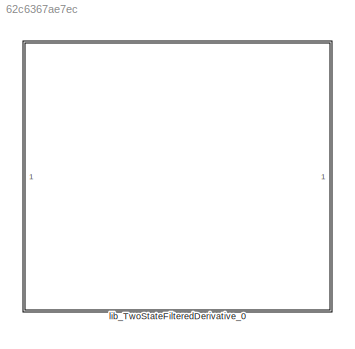
MODEL slx_62c6367ae7ec
KIND library
CONFIG AbsTol = auto
CONFIG EnableMultiTasking = off
CONFIG FixedStep = auto
CONFIG MaxStep = auto
CONFIG MinStep = auto
CONFIG RelTol = 1e-3
CONFIG SampleTimeConstraint = Unconstrained
CONFIG SolverName = VariableStepAuto
CONFIG StartTime = 0.0
CONFIG StopTime = 10.0
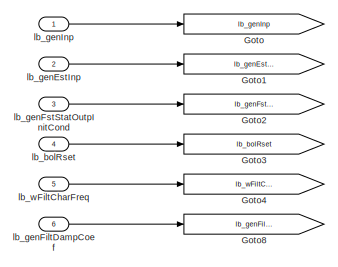
[diagram: lib_TwoStateFilteredDerivative_0 - part 1/4, top left region]
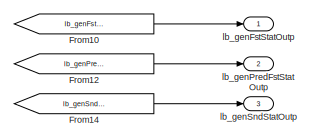
[diagram: lib_TwoStateFilteredDerivative_0 - part 2/4, top right region]
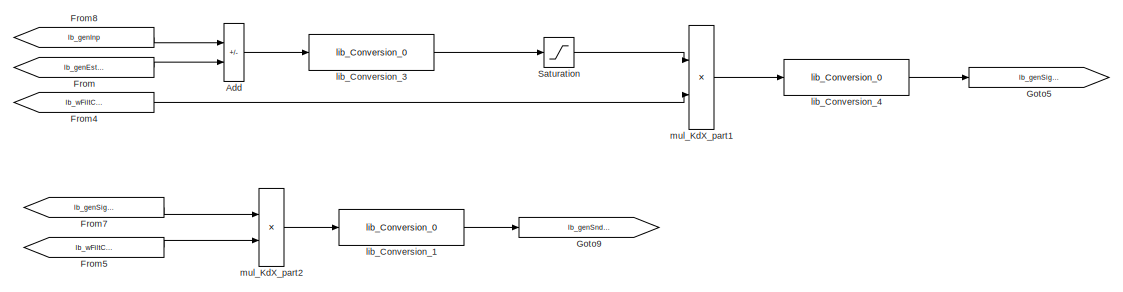
[diagram: lib_TwoStateFilteredDerivative_0 - part 3/4, central region]
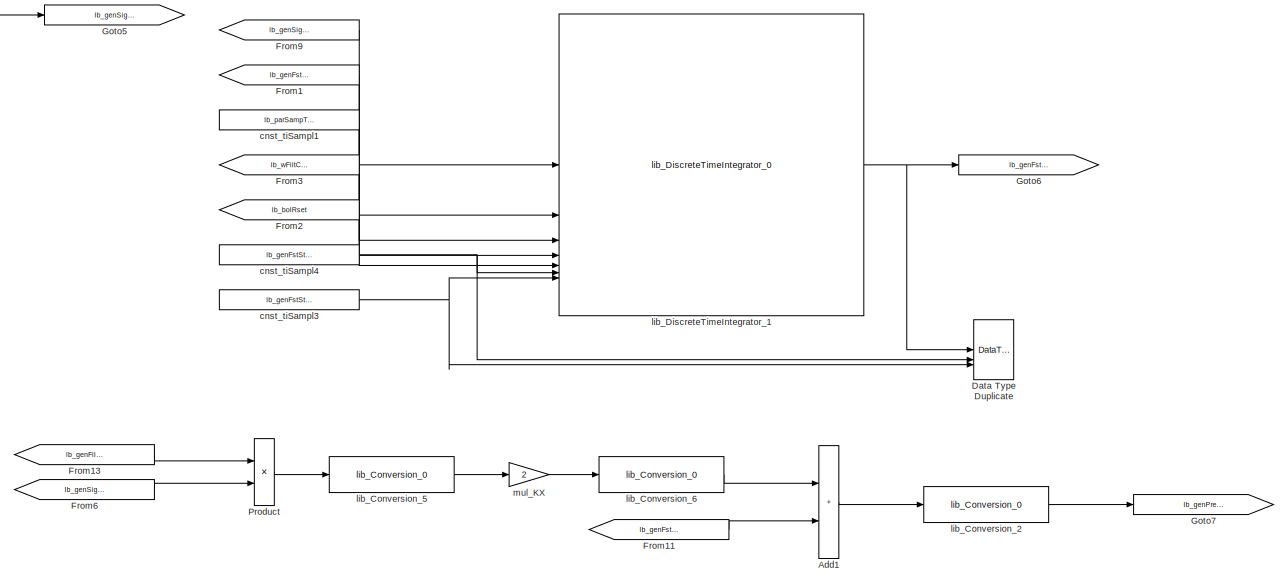
[diagram: lib_TwoStateFilteredDerivative_0 - part 4/4, bottom right region]
BLOCK [SubSystem] lib_TwoStateFilteredDerivative_0
BLOCK [Sum] lib_TwoStateFilteredDerivative_0/Add
  IconShape = rectangular
  Inputs = +-
  OutDataTypeStr = Inherit: Inherit via back propagation
  RndMeth = Simplest
BLOCK [Sum] lib_TwoStateFilteredDerivative_0/Add1
  IconShape = rectangular
  OutDataTypeStr = Inherit: Inherit via back propagation
  RndMeth = Simplest
BLOCK [DataTypeDuplicate] lib_TwoStateFilteredDerivative_0/Data Type Duplicate
  NumInputPorts = 3
BLOCK [From] lib_TwoStateFilteredDerivative_0/From
  GotoTag = lb_genEstInp
BLOCK [From] lib_TwoStateFilteredDerivative_0/From1
  GotoTag = lb_genFstStatOutpInitCond
BLOCK [From] lib_TwoStateFilteredDerivative_0/From10
  GotoTag = lb_genFstStatOutp
BLOCK [From] lib_TwoStateFilteredDerivative_0/From11
  GotoTag = lb_genFstStatOutp
BLOCK [From] lib_TwoStateFilteredDerivative_0/From12
  GotoTag = lb_genPredFstStatOutp
BLOCK [From] lib_TwoStateFilteredDerivative_0/From13
  GotoTag = lb_genFiltDampCoef
BLOCK [From] lib_TwoStateFilteredDerivative_0/From14
  GotoTag = lb_genSndStatOutp
BLOCK [From] lib_TwoStateFilteredDerivative_0/From2
  GotoTag = lb_bolRset
BLOCK [From] lib_TwoStateFilteredDerivative_0/From3
  GotoTag = lb_wFiltCharFreq
BLOCK [From] lib_TwoStateFilteredDerivative_0/From4
  GotoTag = lb_wFiltCharFreq
BLOCK [From] lib_TwoStateFilteredDerivative_0/From5
  GotoTag = lb_wFiltCharFreq
BLOCK [From] lib_TwoStateFilteredDerivative_0/From6
  GotoTag = lb_genSigForIntg
BLOCK [From] lib_TwoStateFilteredDerivative_0/From7
  GotoTag = lb_genSigForIntg
BLOCK [From] lib_TwoStateFilteredDerivative_0/From8
  GotoTag = lb_genInp
BLOCK [From] lib_TwoStateFilteredDerivative_0/From9
  GotoTag = lb_genSigForIntg
BLOCK [Goto] lib_TwoStateFilteredDerivative_0/Goto
  GotoTag = lb_genInp
BLOCK [Goto] lib_TwoStateFilteredDerivative_0/Goto1
  GotoTag = lb_genEstInp
BLOCK [Goto] lib_TwoStateFilteredDerivative_0/Goto2
  GotoTag = lb_genFstStatOutpInitCond
BLOCK [Goto] lib_TwoStateFilteredDerivative_0/Goto3
  GotoTag = lb_bolRset
BLOCK [Goto] lib_TwoStateFilteredDerivative_0/Goto4
  GotoTag = lb_wFiltCharFreq
BLOCK [Goto] lib_TwoStateFilteredDerivative_0/Goto5
  GotoTag = lb_genSigForIntg
BLOCK [Goto] lib_TwoStateFilteredDerivative_0/Goto6
  GotoTag = lb_genFstStatOutp
BLOCK [Goto] lib_TwoStateFilteredDerivative_0/Goto7
  GotoTag = lb_genPredFstStatOutp
BLOCK [Goto] lib_TwoStateFilteredDerivative_0/Goto8
  GotoTag = lb_genFiltDampCoef
BLOCK [Goto] lib_TwoStateFilteredDerivative_0/Goto9
  GotoTag = lb_genSndStatOutp
BLOCK [Product] lib_TwoStateFilteredDerivative_0/Product
  OutDataTypeStr = Inherit: Inherit via back propagation
  RndMeth = Simplest
BLOCK [Saturate] lib_TwoStateFilteredDerivative_0/Saturation
  LowerLimit = -lb_genInpEstErrMaxVal
  RndMeth = Simplest
  UpperLimit = lb_genInpEstErrMaxVal
BLOCK [Constant] lib_TwoStateFilteredDerivative_0/cnst_tiSampl1
  SampleTime = -1
  Value = lb_parSampTime
BLOCK [Constant] lib_TwoStateFilteredDerivative_0/cnst_tiSampl3
  OutDataTypeStr = Inherit: Inherit via back propagation
  SampleTime = -1
  Value = lb_genFstStatOutpUpLim
BLOCK [Constant] lib_TwoStateFilteredDerivative_0/cnst_tiSampl4
  OutDataTypeStr = Inherit: Inherit via back propagation
  SampleTime = -1
  Value = lb_genFstStatOutpLowLim
BLOCK [Inport] lib_TwoStateFilteredDerivative_0/lb_bolRset
  OutDataTypeStr = boolean
  Port = 4
  PortDimensions = 1
  SamplingMode = Sample based
  VarSizeSig = No
BLOCK [Inport] lib_TwoStateFilteredDerivative_0/lb_genEstInp
  Port = 2
  PortDimensions = 1
  SamplingMode = Sample based
  SignalType = real
  VarSizeSig = No
BLOCK [Inport] lib_TwoStateFilteredDerivative_0/lb_genFiltDampCoef
  Port = 6
BLOCK [Outport] lib_TwoStateFilteredDerivative_0/lb_genFstStatOutp
  PortDimensions = 1
  SamplingMode = Sample based
  SignalType = real
  VarSizeSig = No
  VectorParamsAs1DForOutWhenUnconnected = off
BLOCK [Inport] lib_TwoStateFilteredDerivative_0/lb_genFstStatOutpInitCond
  Port = 3
  PortDimensions = 1
  SamplingMode = Sample based
  SignalType = real
  VarSizeSig = No
BLOCK [Inport] lib_TwoStateFilteredDerivative_0/lb_genInp
  PortDimensions = 1
  SamplingMode = Sample based
  SignalType = real
  VarSizeSig = No
BLOCK [Outport] lib_TwoStateFilteredDerivative_0/lb_genPredFstStatOutp
  Port = 2
  PortDimensions = 1
  SamplingMode = Sample based
  SignalType = real
  VarSizeSig = No
  VectorParamsAs1DForOutWhenUnconnected = off
BLOCK [Outport] lib_TwoStateFilteredDerivative_0/lb_genSndStatOutp
  Port = 3
  PortDimensions = 1
  SamplingMode = Sample based
  SignalType = real
  VarSizeSig = No
  VectorParamsAs1DForOutWhenUnconnected = off
BLOCK [Inport] lib_TwoStateFilteredDerivative_0/lb_wFiltCharFreq
  Port = 5
BLOCK [Reference] lib_TwoStateFilteredDerivative_0/lib_Conversion_1  REF=lib_conversion/lib_Conversion_0  (lib defined in slx_7f5c0202220d)
  SourceBlock = lib_conversion/lib_Conversion_0
BLOCK [Reference] lib_TwoStateFilteredDerivative_0/lib_Conversion_2  REF=lib_conversion/lib_Conversion_0  (lib defined in slx_7f5c0202220d)
  SourceBlock = lib_conversion/lib_Conversion_0
BLOCK [Reference] lib_TwoStateFilteredDerivative_0/lib_Conversion_3  REF=lib_conversion/lib_Conversion_0  (lib defined in slx_7f5c0202220d)
  SourceBlock = lib_conversion/lib_Conversion_0
BLOCK [Reference] lib_TwoStateFilteredDerivative_0/lib_Conversion_4  REF=lib_conversion/lib_Conversion_0  (lib defined in slx_7f5c0202220d)
  SourceBlock = lib_conversion/lib_Conversion_0
BLOCK [Reference] lib_TwoStateFilteredDerivative_0/lib_Conversion_5  REF=lib_conversion/lib_Conversion_0  (lib defined in slx_7f5c0202220d)
  SourceBlock = lib_conversion/lib_Conversion_0
BLOCK [Reference] lib_TwoStateFilteredDerivative_0/lib_Conversion_6  REF=lib_conversion/lib_Conversion_0  (lib defined in slx_7f5c0202220d)
  SourceBlock = lib_conversion/lib_Conversion_0
BLOCK [Reference] lib_TwoStateFilteredDerivative_0/lib_DiscreteTimeIntegrator_1  REF=lib_discrete_time_integrator/lib_DiscreteTimeIntegrator_0
  LibrarySourceBlock = vhit_control_library/lib_DiscreteTimeIntegrator_0
  SourceBlock = lib_discrete_time_integrator/lib_DiscreteTimeIntegrator_0
BLOCK [Gain] lib_TwoStateFilteredDerivative_0/mul_KX
  Gain = 2
  NameLocation = top
  OutDataTypeStr = Inherit: Inherit via back propagation
  RndMeth = Simplest
BLOCK [Product] lib_TwoStateFilteredDerivative_0/mul_KdX_part1
  OutDataTypeStr = Inherit: Inherit via back propagation
  RndMeth = Simplest
BLOCK [Product] lib_TwoStateFilteredDerivative_0/mul_KdX_part2
  OutDataTypeStr = Inherit: Inherit via back propagation
  RndMeth = Simplest
LINE lib_TwoStateFilteredDerivative_0/Add1:1 -> lib_TwoStateFilteredDerivative_0/lib_Conversion_2:1
LINE lib_TwoStateFilteredDerivative_0/Add:1 -> lib_TwoStateFilteredDerivative_0/lib_Conversion_3:1
LINE lib_TwoStateFilteredDerivative_0/From10:1 -> lib_TwoStateFilteredDerivative_0/lb_genFstStatOutp:1
LINE lib_TwoStateFilteredDerivative_0/From11:1 -> lib_TwoStateFilteredDerivative_0/Add1:2
LINE lib_TwoStateFilteredDerivative_0/From12:1 -> lib_TwoStateFilteredDerivative_0/lb_genPredFstStatOutp:1
LINE lib_TwoStateFilteredDerivative_0/From13:1 -> lib_TwoStateFilteredDerivative_0/Product:1
LINE lib_TwoStateFilteredDerivative_0/From14:1 -> lib_TwoStateFilteredDerivative_0/lb_genSndStatOutp:1
LINE lib_TwoStateFilteredDerivative_0/From1:1 -> lib_TwoStateFilteredDerivative_0/lib_DiscreteTimeIntegrator_1:2
LINE lib_TwoStateFilteredDerivative_0/From2:1 -> lib_TwoStateFilteredDerivative_0/lib_DiscreteTimeIntegrator_1:5
LINE lib_TwoStateFilteredDerivative_0/From3:1 -> lib_TwoStateFilteredDerivative_0/lib_DiscreteTimeIntegrator_1:4
LINE lib_TwoStateFilteredDerivative_0/From4:1 -> lib_TwoStateFilteredDerivative_0/mul_KdX_part1:2
LINE lib_TwoStateFilteredDerivative_0/From5:1 -> lib_TwoStateFilteredDerivative_0/mul_KdX_part2:2
LINE lib_TwoStateFilteredDerivative_0/From6:1 -> lib_TwoStateFilteredDerivative_0/Product:2
LINE lib_TwoStateFilteredDerivative_0/From7:1 -> lib_TwoStateFilteredDerivative_0/mul_KdX_part2:1
LINE lib_TwoStateFilteredDerivative_0/From8:1 -> lib_TwoStateFilteredDerivative_0/Add:1
LINE lib_TwoStateFilteredDerivative_0/From9:1 -> lib_TwoStateFilteredDerivative_0/lib_DiscreteTimeIntegrator_1:1
LINE lib_TwoStateFilteredDerivative_0/From:1 -> lib_TwoStateFilteredDerivative_0/Add:2
LINE lib_TwoStateFilteredDerivative_0/Product:1 -> lib_TwoStateFilteredDerivative_0/lib_Conversion_5:1
LINE lib_TwoStateFilteredDerivative_0/Saturation:1 -> lib_TwoStateFilteredDerivative_0/mul_KdX_part1:1
LINE lib_TwoStateFilteredDerivative_0/cnst_tiSampl1:1 -> lib_TwoStateFilteredDerivative_0/lib_DiscreteTimeIntegrator_1:3
NET lib_TwoStateFilteredDerivative_0/cnst_tiSampl3:1 -> lib_TwoStateFilteredDerivative_0/Data Type Duplicate:3, lib_TwoStateFilteredDerivative_0/lib_DiscreteTimeIntegrator_1:7
NET lib_TwoStateFilteredDerivative_0/cnst_tiSampl4:1 -> lib_TwoStateFilteredDerivative_0/Data Type Duplicate:2, lib_TwoStateFilteredDerivative_0/lib_DiscreteTimeIntegrator_1:6
LINE lib_TwoStateFilteredDerivative_0/lb_bolRset:1 -> lib_TwoStateFilteredDerivative_0/Goto3:1
LINE lib_TwoStateFilteredDerivative_0/lb_genEstInp:1 -> lib_TwoStateFilteredDerivative_0/Goto1:1
LINE lib_TwoStateFilteredDerivative_0/lb_genFiltDampCoef:1 -> lib_TwoStateFilteredDerivative_0/Goto8:1
LINE lib_TwoStateFilteredDerivative_0/lb_genFstStatOutpInitCond:1 -> lib_TwoStateFilteredDerivative_0/Goto2:1
LINE lib_TwoStateFilteredDerivative_0/lb_genInp:1 -> lib_TwoStateFilteredDerivative_0/Goto:1
LINE lib_TwoStateFilteredDerivative_0/lb_wFiltCharFreq:1 -> lib_TwoStateFilteredDerivative_0/Goto4:1
LINE lib_TwoStateFilteredDerivative_0/lib_Conversion_1:1 -> lib_TwoStateFilteredDerivative_0/Goto9:1
LINE lib_TwoStateFilteredDerivative_0/lib_Conversion_2:1 -> lib_TwoStateFilteredDerivative_0/Goto7:1
LINE lib_TwoStateFilteredDerivative_0/lib_Conversion_3:1 -> lib_TwoStateFilteredDerivative_0/Saturation:1
LINE lib_TwoStateFilteredDerivative_0/lib_Conversion_4:1 -> lib_TwoStateFilteredDerivative_0/Goto5:1
LINE lib_TwoStateFilteredDerivative_0/lib_Conversion_5:1 -> lib_TwoStateFilteredDerivative_0/mul_KX:1
LINE lib_TwoStateFilteredDerivative_0/lib_Conversion_6:1 -> lib_TwoStateFilteredDerivative_0/Add1:1
NET lib_TwoStateFilteredDerivative_0/lib_DiscreteTimeIntegrator_1:1 -> lib_TwoStateFilteredDerivative_0/Data Type Duplicate:1, lib_TwoStateFilteredDerivative_0/Goto6:1
LINE lib_TwoStateFilteredDerivative_0/mul_KX:1 -> lib_TwoStateFilteredDerivative_0/lib_Conversion_6:1
LINE lib_TwoStateFilteredDerivative_0/mul_KdX_part1:1 -> lib_TwoStateFilteredDerivative_0/lib_Conversion_4:1
LINE lib_TwoStateFilteredDerivative_0/mul_KdX_part2:1 -> lib_TwoStateFilteredDerivative_0/lib_Conversion_1:1
note: NET lines group one-source signal fan-out (src -> all destinations, sorted); 1:1 wires keep LINE
